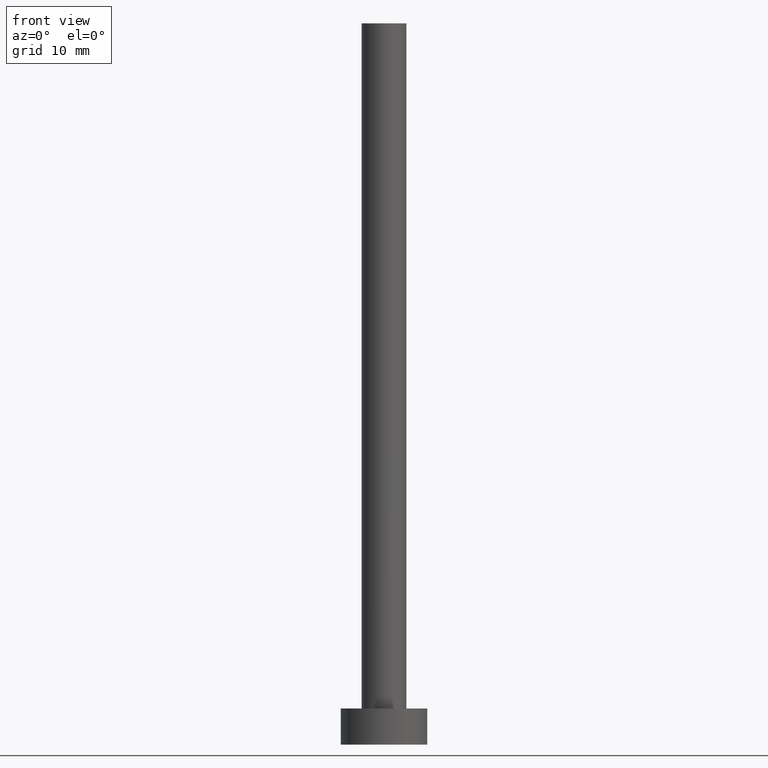
[diagram: clean part render]
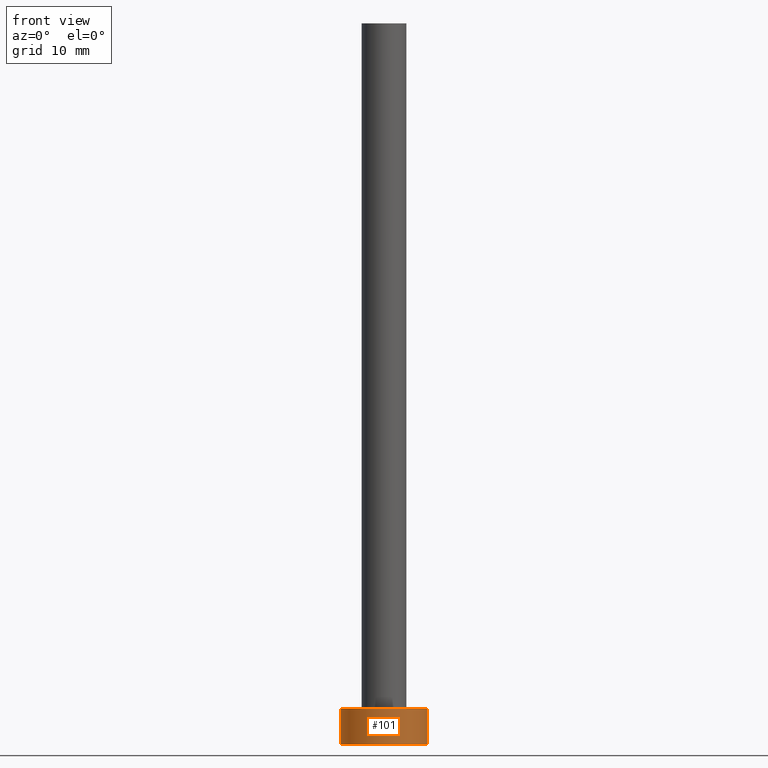
[diagram: same view with one face highlighted and labeled with its STEP entity id]
A machine part, front view. The second image highlights one B-rep face of the part: STEP entity #101.
In plain terms, the highlighted cylindrical surface (partial cylindrical patch) has radius 6 mm, axis along (-0, -0, -1).
Its self-contained STEP definition (entity closure, byte-faithful):
#9 = CYLINDRICAL_SURFACE ( 'NONE', #206, 6.000000000000000888 ) ;
#11 = VERTEX_POINT ( 'NONE', #134 ) ;
#20 = VERTEX_POINT ( 'NONE', #171 ) ;
#27 = CARTESIAN_POINT ( 'NONE',  ( -6.000000000000000888, 0.000000000000000000, 5.000000000000000000 ) ) ;
#39 = VERTEX_POINT ( 'NONE', #154 ) ;
#40 = LINE ( 'NONE', #112, #117 ) ;
#43 = EDGE_CURVE ( 'NONE', #11, #20, #74, .T. ) ;
#49 = DIRECTION ( 'NONE',  ( 0.000000000000000000, 0.000000000000000000, 1.000000000000000000 ) ) ;
#54 = CARTESIAN_POINT ( 'NONE',  ( -6.000000000000000888, 0.000000000000000000, 5.000000000000000000 ) ) ;
#57 = EDGE_CURVE ( 'NONE', #39, #20, #40, .T. ) ;
#70 = EDGE_CURVE ( 'NONE', #150, #11, #226, .T. ) ;
#71 = DIRECTION ( 'NONE',  ( 1.000000000000000000, 0.000000000000000000, 0.000000000000000000 ) ) ;
#72 = CIRCLE ( 'NONE', #248, 6.000000000000000888 ) ;
#73 = DIRECTION ( 'NONE',  ( -0.000000000000000000, -0.000000000000000000, -1.000000000000000000 ) ) ;
#74 = CIRCLE ( 'NONE', #165, 6.000000000000000888 ) ;
#96 = DIRECTION ( 'NONE',  ( -0.000000000000000000, -0.000000000000000000, -1.000000000000000000 ) ) ;
#101 = ADVANCED_FACE ( 'NONE', ( #149 ), #9, .T. ) ;
#112 = CARTESIAN_POINT ( 'NONE',  ( 6.000000000000000888, 7.347880794884120722E-16, 5.000000000000000000 ) ) ;
#117 = VECTOR ( 'NONE', #96, 1000.000000000000000 ) ;
#122 = DIRECTION ( 'NONE',  ( 1.000000000000000000, 0.000000000000000000, 0.000000000000000000 ) ) ;
#131 = CARTESIAN_POINT ( 'NONE',  ( 0.000000000000000000, 0.000000000000000000, 5.000000000000000000 ) ) ;
#134 = CARTESIAN_POINT ( 'NONE',  ( -6.000000000000000888, 0.000000000000000000, 0.000000000000000000 ) ) ;
#142 = EDGE_CURVE ( 'NONE', #150, #39, #72, .T. ) ;
#148 = DIRECTION ( 'NONE',  ( -1.000000000000000000, 0.000000000000000000, 0.000000000000000000 ) ) ;
#149 = FACE_OUTER_BOUND ( 'NONE', #224, .T. ) ;
#150 = VERTEX_POINT ( 'NONE', #27 ) ;
#154 = CARTESIAN_POINT ( 'NONE',  ( 6.000000000000000888, 7.347880794884120722E-16, 5.000000000000000000 ) ) ;
#165 = AXIS2_PLACEMENT_3D ( 'NONE', #247, #210, #71 ) ;
#171 = CARTESIAN_POINT ( 'NONE',  ( 6.000000000000000888, 7.347880794884120722E-16, 0.000000000000000000 ) ) ;
#185 = CARTESIAN_POINT ( 'NONE',  ( 0.000000000000000000, 0.000000000000000000, 5.000000000000000000 ) ) ;
#191 = VECTOR ( 'NONE', #205, 1000.000000000000000 ) ;
#200 = ORIENTED_EDGE ( 'NONE', *, *, #57, .F. ) ;
#203 = ORIENTED_EDGE ( 'NONE', *, *, #43, .T. ) ;
#205 = DIRECTION ( 'NONE',  ( -0.000000000000000000, -0.000000000000000000, -1.000000000000000000 ) ) ;
#206 = AXIS2_PLACEMENT_3D ( 'NONE', #131, #73, #148 ) ;
#210 = DIRECTION ( 'NONE',  ( 0.000000000000000000, 0.000000000000000000, 1.000000000000000000 ) ) ;
#212 = ORIENTED_EDGE ( 'NONE', *, *, #70, .T. ) ;
#224 = EDGE_LOOP ( 'NONE', ( #200, #233, #212, #203 ) ) ;
#226 = LINE ( 'NONE', #54, #191 ) ;
#233 = ORIENTED_EDGE ( 'NONE', *, *, #142, .F. ) ;
#247 = CARTESIAN_POINT ( 'NONE',  ( 0.000000000000000000, 0.000000000000000000, 0.000000000000000000 ) ) ;
#248 = AXIS2_PLACEMENT_3D ( 'NONE', #185, #49, #122 ) ;